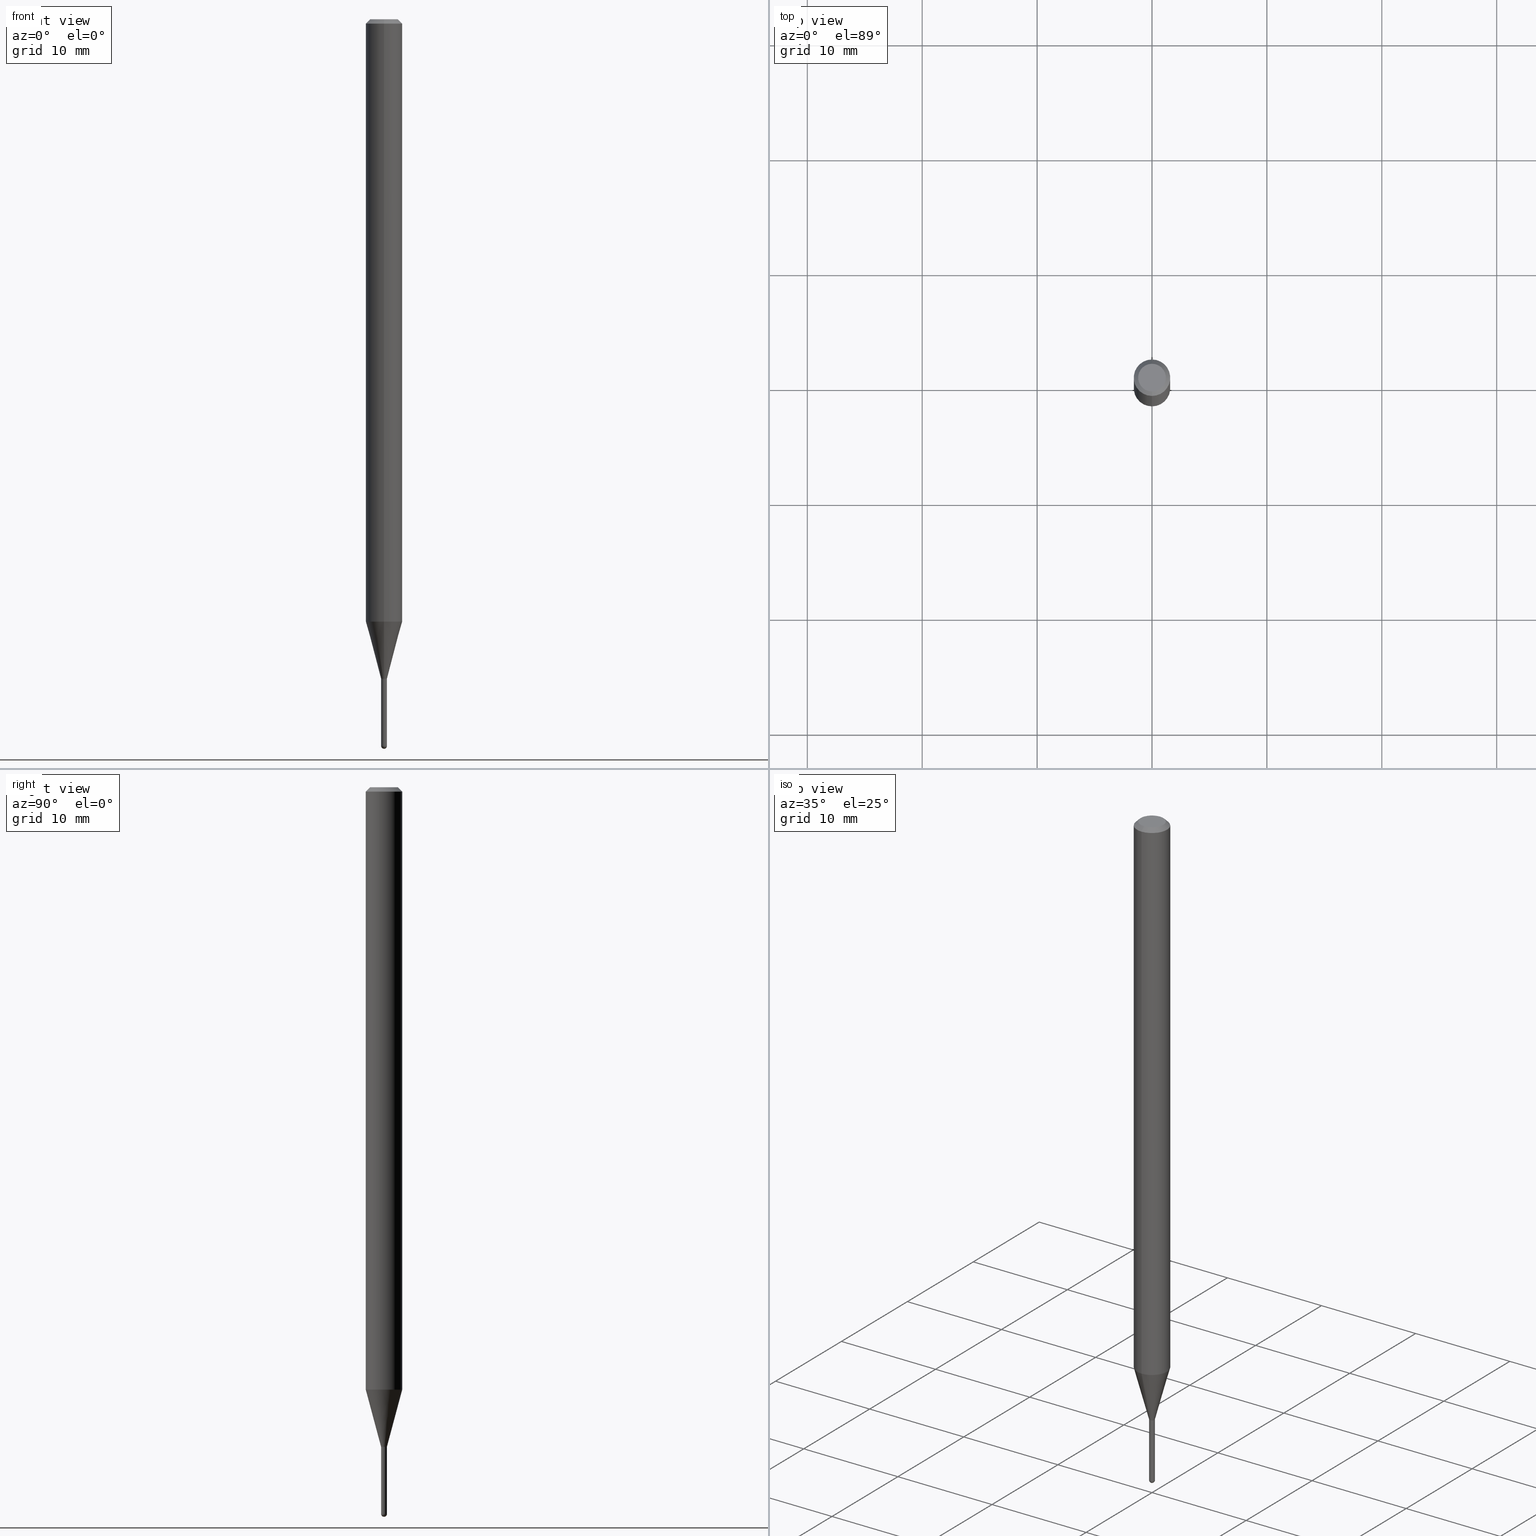
[diagram: canonical four-view strip — front | top / right | iso, engineering-drawing reading convention]
A machine part, canonical four-view strip (front | top / right | iso — engineering-drawing reading convention). The complete STEP part file that produces these views, byte-faithful:
ISO-10303-21;
HEADER;
FILE_DESCRIPTION (( 'STEP AP203' ),
    '1' );
FILE_NAME ('01557.STEP',
    '2024-03-07T19:39:17',
    ( '' ),
    ( '' ),
    'SwSTEP 2.0',
    'SolidWorks 2023',
    '' );
FILE_SCHEMA (( 'CONFIG_CONTROL_DESIGN' ));
ENDSEC;

DATA;
#1 =( CONVERSION_BASED_UNIT ( 'INCH', #359 ) LENGTH_UNIT ( ) NAMED_UNIT ( #110 ) );
#2 = DIRECTION ( 'NONE',  ( -2.445506458260102306E-29, 3.491427418928771548E-15, 1.000000000000000000 ) ) ;
#3 = AXIS2_PLACEMENT_3D ( 'NONE', #67, #63, #492 ) ;
#4 = EDGE_CURVE ( 'NONE', #188, #154, #497, .T. ) ;
#5 = PERSON_AND_ORGANIZATION_ROLE ( 'design_owner' ) ;
#6 = DIRECTION ( 'NONE',  ( -2.445506458260102306E-29, 3.491427418928771153E-15, 1.000000000000000000 ) ) ;
#7 = PERSON_AND_ORGANIZATION ( #243, #420 ) ;
#8 = CARTESIAN_POINT ( 'NONE',  ( 0.000000000000000000, 0.000000000000000000, 0.000000000000000000 ) ) ;
#9 = EDGE_CURVE ( 'NONE', #191, #188, #205, .T. ) ;
#10 = DIRECTION ( 'NONE',  ( -4.937700262164667949E-15, -0.7071067811865623387, 0.7071067811865325847 ) ) ;
#11 = SECURITY_CLASSIFICATION_LEVEL ( 'unclassified' ) ;
#12 = AXIS2_PLACEMENT_3D ( 'NONE', #381, #341, #190 ) ;
#13 = LINE ( 'NONE', #252, #112 ) ;
#14 = CARTESIAN_POINT ( 'NONE',  ( 3.668259687390156296E-31, -5.237141128393160650E-17, -0.01500000000000000812 ) ) ;
#15 = EDGE_CURVE ( 'NONE', #294, #26, #480, .T. ) ;
#16 = CARTESIAN_POINT ( 'NONE',  ( 6.927791673666378034E-17, 0.009499999999992108507, -2.259999999999999787 ) ) ;
#17 = ORIENTED_EDGE ( 'NONE', *, *, #383, .T. ) ;
#18 = AXIS2_PLACEMENT_3D ( 'NONE', #251, #452, #129 ) ;
#19 = APPROVAL_PERSON_ORGANIZATION ( #316, #328, #291 ) ;
#20 = DIRECTION ( 'NONE',  ( -2.445506458260102306E-29, 3.491427418928771548E-15, 1.000000000000000000 ) ) ;
#21 = ORIENTED_EDGE ( 'NONE', *, *, #138, .F. ) ;
#22 = DIRECTION ( 'NONE',  ( 1.000000000000000000, -6.982962677686235945E-15, 0.000000000000000000 ) ) ;
#23 = ORIENTED_EDGE ( 'NONE', *, *, #235, .T. ) ;
#24 = ADVANCED_FACE ( 'NONE', ( #318 ), #84, .F. ) ;
#25 = DIRECTION ( 'NONE',  ( -6.982962677686265922E-15, -1.000000000000000000, 3.491427418928771548E-15 ) ) ;
#26 = VERTEX_POINT ( 'NONE', #325 ) ;
#27 = DIRECTION ( 'NONE',  ( -6.982962677686265922E-15, -1.000000000000000000, 0.000000000000000000 ) ) ;
#28 = AXIS2_PLACEMENT_3D ( 'NONE', #208, #246, #444 ) ;
#29 = ORIENTED_EDGE ( 'NONE', *, *, #465, .T. ) ;
#30 = AXIS2_PLACEMENT_3D ( 'NONE', #494, #186, #385 ) ;
#31 = FACE_OUTER_BOUND ( 'NONE', #225, .T. ) ;
#32 = MANIFOLD_SOLID_BREP ( 'Body-Move/Copy2[2]', #389 ) ;
#33 = ORIENTED_EDGE ( 'NONE', *, *, #417, .F. ) ;
#34 = APPLICATION_PROTOCOL_DEFINITION ( 'international standard', 'config_control_design', 1994, #423 ) ;
#35 = CC_DESIGN_DATE_AND_TIME_ASSIGNMENT ( #448, #411, ( #399 ) ) ;
#36 = EDGE_LOOP ( 'NONE', ( #23, #97, #376, #500 ) ) ;
#37 = CALENDAR_DATE ( 2024, 7, 3 ) ;
#38 = CARTESIAN_POINT ( 'NONE',  ( 6.089217327400989947E-29, -8.693788533719431716E-15, -2.489999999999999769 ) ) ;
#39 = VECTOR ( 'NONE', #126, 39.37007874015748143 ) ;
#40 = CARTESIAN_POINT ( 'NONE',  ( 0.000000000000000000, 0.000000000000000000, 0.000000000000000000 ) ) ;
#41 = EDGE_LOOP ( 'NONE', ( #311, #358, #193, #265 ) ) ;
#42 = ADVANCED_FACE ( 'NONE', ( #275 ), #76, .T. ) ;
#43 = CARTESIAN_POINT ( 'NONE',  ( 2.575717417130880686E-16, 0.009999999999991756802, -2.260000000000000231 ) ) ;
#44 = DIRECTION ( 'NONE',  ( 1.000000000000000000, -6.982962677686265922E-15, 4.876176775795935793E-29 ) ) ;
#45 = DIRECTION ( 'NONE',  ( -2.445468806185136597E-29, 3.491481338843145583E-15, 1.000000000000000000 ) ) ;
#46 = SHAPE_DEFINITION_REPRESENTATION ( #176, #200 ) ;
#47 = VERTEX_POINT ( 'NONE', #320 ) ;
#48 = EDGE_CURVE ( 'NONE', #273, #182, #304, .T. ) ;
#49 = CARTESIAN_POINT ( 'NONE',  ( -6.633814543796425728E-17, -0.009500000000007889286, -2.259999999999999787 ) ) ;
#50 = ORIENTED_EDGE ( 'NONE', *, *, #211, .T. ) ;
#51 = PERSON_AND_ORGANIZATION ( #243, #420 ) ;
#52 = DIRECTION ( 'NONE',  ( 2.445506458260102306E-29, -3.491427418928771548E-15, -1.000000000000000000 ) ) ;
#53 = AXIS2_PLACEMENT_3D ( 'NONE', #156, #435, #317 ) ;
#54 = LOCAL_TIME ( 14, 39, 17.00000000000000000, #372 ) ;
#55 = DIRECTION ( 'NONE',  ( -2.445468806185136597E-29, 3.491481338843145583E-15, 1.000000000000000000 ) ) ;
#56 = CC_DESIGN_PERSON_AND_ORGANIZATION_ASSIGNMENT ( #51, #296, ( #247 ) ) ;
#57 = COORDINATED_UNIVERSAL_TIME_OFFSET ( 5, 0, .BEHIND. ) ;
#58 = DIRECTION ( 'NONE',  ( -2.445506458260102306E-29, 3.491427418928771548E-15, 1.000000000000000000 ) ) ;
#59 = ORIENTED_EDGE ( 'NONE', *, *, #281, .F. ) ;
#60 = DIRECTION ( 'NONE',  ( -2.445506458260102306E-29, 3.491427418928771548E-15, 1.000000000000000000 ) ) ;
#61 = CIRCLE ( 'NONE', #406, 0.01000000000000000021 ) ;
#62 = VECTOR ( 'NONE', #319, 39.37007874015748854 ) ;
#63 = DIRECTION ( 'NONE',  ( -2.445468806185136597E-29, 3.491481338843145583E-15, 1.000000000000000000 ) ) ;
#64 = ORIENTED_EDGE ( 'NONE', *, *, #417, .T. ) ;
#65 = SPHERICAL_SURFACE ( 'NONE', #237, 0.01000000000000008521 ) ;
#66 = ORIENTED_EDGE ( 'NONE', *, *, #437, .F. ) ;
#67 = CARTESIAN_POINT ( 'NONE',  ( 5.526759501978408888E-29, -7.890747825785510097E-15, -2.260000000000000231 ) ) ;
#68 = ORIENTED_EDGE ( 'NONE', *, *, #48, .T. ) ;
#69 = CARTESIAN_POINT ( 'NONE',  ( 4.364351673553919652E-16, 0.06249999999999995143, -0.01500000000000022669 ) ) ;
#70 = CIRCLE ( 'NONE', #507, 0.009499999999999999764 ) ;
#71 = ORIENTED_EDGE ( 'NONE', *, *, #437, .T. ) ;
#72 = ADVANCED_FACE ( 'NONE', ( #206 ), #236, .F. ) ;
#73 = DIRECTION ( 'NONE',  ( -2.445506458260102306E-29, 3.491427418928771548E-15, 1.000000000000000000 ) ) ;
#74 = VERTEX_POINT ( 'NONE', #77 ) ;
#75 = DIRECTION ( 'NONE',  ( 1.000000000000000000, 0.000000000000000000, 0.000000000000000000 ) ) ;
#76 = CYLINDRICAL_SURFACE ( 'NONE', #245, 0.01000000000000000021 ) ;
#77 = CARTESIAN_POINT ( 'NONE',  ( 4.440892098501133991E-16, 0.06249999999999995143, -0.01500000000000022669 ) ) ;
#78 = AXIS2_PLACEMENT_3D ( 'NONE', #410, #288, #210 ) ;
#79 = DIRECTION ( 'NONE',  ( -2.445506458260102306E-29, 3.491427418928771548E-15, 1.000000000000000000 ) ) ;
#80 = ORIENTED_EDGE ( 'NONE', *, *, #343, .F. ) ;
#81 = PERSON_AND_ORGANIZATION_ROLE ( 'creator' ) ;
#82 = ORIENTED_EDGE ( 'NONE', *, *, #109, .F. ) ;
#83 = CARTESIAN_POINT ( 'NONE',  ( 3.840629472727447874E-16, 0.04749999999999999362, -1.747056831868805136E-16 ) ) ;
#84 = CYLINDRICAL_SURFACE ( 'NONE', #53, 0.009999999999999649794 ) ;
#85 = AXIS2_PLACEMENT_3D ( 'NONE', #477, #6, #509 ) ;
#86 = AXIS2_PLACEMENT_3D ( 'NONE', #306, #302, #418 ) ;
#87 = CALENDAR_DATE ( 2024, 7, 3 ) ;
#88 = DIRECTION ( 'NONE',  ( -1.000000000000000000, 6.982962677686265922E-15, -4.876176775795935793E-29 ) ) ;
#89 = ORIENTED_EDGE ( 'NONE', *, *, #407, .F. ) ;
#90 = DIRECTION ( 'NONE',  ( -7.105427357601000281E-15, -1.000000000000000000, 0.000000000000000000 ) ) ;
#91 = DIRECTION ( 'NONE',  ( -2.445506458260102306E-29, 3.491427418928771153E-15, 1.000000000000000000 ) ) ;
#92 = EDGE_CURVE ( 'NONE', #352, #397, #471, .T. ) ;
#93 = AXIS2_PLACEMENT_3D ( 'NONE', #360, #2, #285 ) ;
#94 = CONICAL_SURFACE ( 'NONE', #414, 0.009499999999999999764, 0.7853981633974728149 ) ;
#95 = CIRCLE ( 'NONE', #347, 0.06250000000000000000 ) ;
#96 = CARTESIAN_POINT ( 'NONE',  ( 5.047689992163456778E-29, -7.206541279564027656E-15, -2.064067332602639304 ) ) ;
#97 = ORIENTED_EDGE ( 'NONE', *, *, #125, .T. ) ;
#98 = DIRECTION ( 'NONE',  ( -2.445506458260102306E-29, 3.491427418928771548E-15, 1.000000000000000000 ) ) ;
#99 = CARTESIAN_POINT ( 'NONE',  ( 6.089217327400989947E-29, -8.693788533719431716E-15, -2.489999999999999769 ) ) ;
#100 = ORIENTED_EDGE ( 'NONE', *, *, #125, .F. ) ;
#101 = ADVANCED_FACE ( 'NONE', ( #401 ), #282, .T. ) ;
#102 =( GEOMETRIC_REPRESENTATION_CONTEXT ( 3 ) GLOBAL_UNCERTAINTY_ASSIGNED_CONTEXT ( ( #309 ) ) GLOBAL_UNIT_ASSIGNED_CONTEXT ( ( #1, #321, #153 ) ) REPRESENTATION_CONTEXT ( 'NONE', 'WORKASPACE' ) );
#103 = DIRECTION ( 'NONE',  ( 2.445506458260102306E-29, -3.491427418928771153E-15, -1.000000000000000000 ) ) ;
#104 = ORIENTED_EDGE ( 'NONE', *, *, #138, .T. ) ;
#105 = LINE ( 'NONE', #424, #354 ) ;
#106 = VERTEX_POINT ( 'NONE', #116 ) ;
#107 = FACE_OUTER_BOUND ( 'NONE', #495, .T. ) ;
#108 = EDGE_LOOP ( 'NONE', ( #199, #386, #89, #66, #234 ) ) ;
#109 = EDGE_CURVE ( 'NONE', #487, #504, #121, .T. ) ;
#110 = DIMENSIONAL_EXPONENTS ( 1.000000000000000000, 0.000000000000000000, 0.000000000000000000, 0.000000000000000000, 0.000000000000000000, 0.000000000000000000, 0.000000000000000000 ) ;
#111 = DIRECTION ( 'NONE',  ( -2.445506458260102306E-29, 3.491427418928771548E-15, 1.000000000000000000 ) ) ;
#112 = VECTOR ( 'NONE', #450, 39.37007874015748854 ) ;
#113 = CIRCLE ( 'NONE', #472, 0.06250000000000000000 ) ;
#114 = ORIENTED_EDGE ( 'NONE', *, *, #248, .T. ) ;
#115 = DIRECTION ( 'NONE',  ( -2.445506458260102306E-29, 3.491427418928771548E-15, 1.000000000000000000 ) ) ;
#116 = CARTESIAN_POINT ( 'NONE',  ( 4.440892098501130047E-16, 0.06249999999999279743, -2.064067332602639304 ) ) ;
#117 = ADVANCED_FACE ( 'NONE', ( #157 ), #337, .T. ) ;
#118 = DIRECTION ( 'NONE',  ( -6.982962677686265922E-15, -1.000000000000000000, 4.370956789862821150E-15 ) ) ;
#119 = DIRECTION ( 'NONE',  ( -1.000000000000000000, 6.982962677686265922E-15, -4.883557194083113462E-29 ) ) ;
#120 = APPROVAL_DATE_TIME ( #510, #219 ) ;
#121 = LINE ( 'NONE', #442, #184 ) ;
#122 = AXIS2_PLACEMENT_3D ( 'NONE', #446, #45, #475 ) ;
#123 = LINE ( 'NONE', #284, #287 ) ;
#124 = DIRECTION ( 'NONE',  ( -2.445506458260102306E-29, 3.491427418928771548E-15, 1.000000000000000000 ) ) ;
#125 = EDGE_CURVE ( 'NONE', #106, #74, #123, .T. ) ;
#126 = DIRECTION ( 'NONE',  ( -4.851104656540964275E-15, -0.7071067811865500152, -0.7071067811865450192 ) ) ;
#127 = AXIS2_PLACEMENT_3D ( 'NONE', #409, #119, #474 ) ;
#128 = AXIS2_PLACEMENT_3D ( 'NONE', #40, #204, #75 ) ;
#129 = DIRECTION ( 'NONE',  ( -6.982962677686265922E-15, -1.000000000000000000, 3.491427418928771548E-15 ) ) ;
#130 = ORIENTED_EDGE ( 'NONE', *, *, #343, .T. ) ;
#131 = EDGE_CURVE ( 'NONE', #487, #106, #13, .T. ) ;
#132 = LINE ( 'NONE', #255, #380 ) ;
#133 = COORDINATED_UNIVERSAL_TIME_OFFSET ( 5, 0, .BEHIND. ) ;
#134 = DIRECTION ( 'NONE',  ( -6.982962677686265922E-15, -1.000000000000000000, 3.491427418928771548E-15 ) ) ;
#135 = EDGE_LOOP ( 'NONE', ( #419, #240 ) ) ;
#136 = CC_DESIGN_APPROVAL ( #219, ( #301 ) ) ;
#137 = CARTESIAN_POINT ( 'NONE',  ( -3.773273898774340269E-16, -0.04749999999999999362, 1.569799216113527785E-16 ) ) ;
#138 = EDGE_CURVE ( 'NONE', #154, #47, #61, .T. ) ;
#139 = DIRECTION ( 'NONE',  ( -1.000000000000000000, 6.982962677686265922E-15, -4.883557194083113462E-29 ) ) ;
#140 = EDGE_CURVE ( 'NONE', #191, #47, #453, .T. ) ;
#141 = LINE ( 'NONE', #278, #62 ) ;
#142 = ORIENTED_EDGE ( 'NONE', *, *, #9, .T. ) ;
#143 = AXIS2_PLACEMENT_3D ( 'NONE', #99, #427, #179 ) ;
#144 = CARTESIAN_POINT ( 'NONE',  ( 2.167423220526591496E-46, -3.094410499309579450E-32, -8.862880787763864499E-18 ) ) ;
#145 = EDGE_LOOP ( 'NONE', ( #388, #114, #165, #33 ) ) ;
#146 = DIRECTION ( 'NONE',  ( -2.445506458260102306E-29, 3.491427418928771153E-15, 1.000000000000000000 ) ) ;
#147 = CC_DESIGN_PERSON_AND_ORGANIZATION_ASSIGNMENT ( #7, #365, ( #247 ) ) ;
#148 = ORIENTED_EDGE ( 'NONE', *, *, #377, .F. ) ;
#149 = CARTESIAN_POINT ( 'NONE',  ( 0.01000000000000000021, -6.982962677686265724E-17, 4.876176775795935968E-31 ) ) ;
#150 = ORIENTED_EDGE ( 'NONE', *, *, #274, .F. ) ;
#151 = APPLICATION_PROTOCOL_DEFINITION ( 'international standard', 'config_control_design', 1994, #505 ) ;
#152 = ORIENTED_EDGE ( 'NONE', *, *, #314, .F. ) ;
#153 =( NAMED_UNIT ( * ) SI_UNIT ( $, .STERADIAN. ) SOLID_ANGLE_UNIT ( ) );
#154 = VERTEX_POINT ( 'NONE', #336 ) ;
#155 = MECHANICAL_CONTEXT ( 'NONE', #423, 'mechanical' ) ;
#156 = CARTESIAN_POINT ( 'NONE',  ( 0.000000000000000000, 0.000000000000000000, 0.000000000000000000 ) ) ;
#157 = FACE_OUTER_BOUND ( 'NONE', #145, .T. ) ;
#158 = LOCAL_TIME ( 14, 39, 17.00000000000000000, #434 ) ;
#159 = DATE_AND_TIME ( #361, #174 ) ;
#160 = EDGE_CURVE ( 'NONE', #269, #74, #379, .T. ) ;
#161 = DIRECTION ( 'NONE',  ( 6.982962677686265922E-15, 1.000000000000000000, -3.483106191921935554E-15 ) ) ;
#162 = PERSON_AND_ORGANIZATION ( #243, #420 ) ;
#163 = DIRECTION ( 'NONE',  ( -2.445506458260102306E-29, 3.491427418928771548E-15, 1.000000000000000000 ) ) ;
#164 = DIRECTION ( 'NONE',  ( -6.982962677686265922E-15, -1.000000000000000000, 3.483106191921935554E-15 ) ) ;
#165 = ORIENTED_EDGE ( 'NONE', *, *, #160, .T. ) ;
#166 = CIRCLE ( 'NONE', #439, 0.06250000000000000000 ) ;
#167 = CIRCLE ( 'NONE', #12, 0.009999999999999648059 ) ;
#168 = LOCAL_TIME ( 14, 39, 17.00000000000000000, #133 ) ;
#169 = PLANE ( 'NONE',  #447 ) ;
#170 = CARTESIAN_POINT ( 'NONE',  ( 6.113244432318252078E-29, -8.729315670507435968E-15, -2.500000000000000000 ) ) ;
#171 = APPROVAL_ROLE ( '' ) ;
#172 = DIRECTION ( 'NONE',  ( -6.982962677686265922E-15, -1.000000000000000000, 3.483106191921935554E-15 ) ) ;
#173 = VECTOR ( 'NONE', #335, 39.37007874015748143 ) ;
#174 = LOCAL_TIME ( 14, 39, 17.00000000000000000, #194 ) ;
#175 = CARTESIAN_POINT ( 'NONE',  ( 0.000000000000000000, 0.000000000000000000, 0.000000000000000000 ) ) ;
#176 = PRODUCT_DEFINITION_SHAPE ( 'NONE', 'NONE',  #301 ) ;
#177 = ADVANCED_FACE ( 'NONE', ( #373 ), #346, .T. ) ;
#178 = ORIENTED_EDGE ( 'NONE', *, *, #109, .T. ) ;
#179 = DIRECTION ( 'NONE',  ( 1.000000000000000000, -6.982962677686235945E-15, 0.000000000000000000 ) ) ;
#180 = ORIENTED_EDGE ( 'NONE', *, *, #248, .F. ) ;
#181 = DIRECTION ( 'NONE',  ( -2.445506458260102306E-29, 3.491427418928771548E-15, 1.000000000000000000 ) ) ;
#182 = VERTEX_POINT ( 'NONE', #49 ) ;
#183 = EDGE_CURVE ( 'NONE', #26, #269, #212, .T. ) ;
#184 = VECTOR ( 'NONE', #363, 39.37007874015748143 ) ;
#185 = AXIS2_PLACEMENT_3D ( 'NONE', #461, #103, #496 ) ;
#186 = DIRECTION ( 'NONE',  ( -2.445468806185136597E-29, 3.491481338843145583E-15, 1.000000000000000000 ) ) ;
#187 = APPROVAL_PERSON_ORGANIZATION ( #408, #391, #171 ) ;
#188 = VERTEX_POINT ( 'NONE', #412 ) ;
#189 = ADVANCED_FACE ( 'NONE', ( #481 ), #484, .T. ) ;
#190 = DIRECTION ( 'NONE',  ( -6.982962677686265922E-15, -1.000000000000000000, 0.000000000000000000 ) ) ;
#191 = VERTEX_POINT ( 'NONE', #170 ) ;
#192 = CARTESIAN_POINT ( 'NONE',  ( 7.105427357606255327E-17, 0.009999999999991729047, -2.259500000000000508 ) ) ;
#193 = ORIENTED_EDGE ( 'NONE', *, *, #235, .F. ) ;
#194 = COORDINATED_UNIVERSAL_TIME_OFFSET ( 5, 0, .BEHIND. ) ;
#195 = AXIS2_PLACEMENT_3D ( 'NONE', #416, #163, #134 ) ;
#196 = CIRCLE ( 'NONE', #86, 0.009999999999999649794 ) ;
#197 = DIRECTION ( 'NONE',  ( 1.000000000000000000, -6.982962677686235945E-15, 0.000000000000000000 ) ) ;
#198 = APPROVAL_ROLE ( '' ) ;
#199 = ORIENTED_EDGE ( 'NONE', *, *, #4, .T. ) ;
#200 = ADVANCED_BREP_SHAPE_REPRESENTATION ( '01557', ( #367, #32, #128 ), #102 ) ;
#201 =( LENGTH_UNIT ( ) NAMED_UNIT ( * ) SI_UNIT ( $, .METRE. ) );
#202 = CARTESIAN_POINT ( 'NONE',  ( -6.982962677680492249E-17, -0.01000000000000753758, -2.260000000000000231 ) ) ;
#203 = CC_DESIGN_PERSON_AND_ORGANIZATION_ASSIGNMENT ( #441, #81, ( #301 ) ) ;
#204 = DIRECTION ( 'NONE',  ( 0.000000000000000000, 0.000000000000000000, 1.000000000000000000 ) ) ;
#205 = CIRCLE ( 'NONE', #28, 0.01000000000000008521 ) ;
#206 = FACE_OUTER_BOUND ( 'NONE', #393, .T. ) ;
#207 = CIRCLE ( 'NONE', #370, 0.01000000000000000021 ) ;
#208 = CARTESIAN_POINT ( 'NONE',  ( 6.088362161111811119E-29, -8.695013180518578499E-15, -2.489999999999999769 ) ) ;
#209 = ADVANCED_FACE ( 'NONE', ( #216 ), #486, .F. ) ;
#210 = DIRECTION ( 'NONE',  ( -6.982962677686266711E-15, -1.000000000000000000, 3.491427418928772337E-15 ) ) ;
#211 = EDGE_CURVE ( 'NONE', #487, #294, #229, .T. ) ;
#212 = LINE ( 'NONE', #258, #173 ) ;
#213 = AXIS2_PLACEMENT_3D ( 'NONE', #402, #124, #394 ) ;
#214 = CARTESIAN_POINT ( 'NONE',  ( 3.668259687390156296E-31, -5.237141128393160650E-17, -0.01500000000000000812 ) ) ;
#215 = APPROVAL_DATE_TIME ( #250, #328 ) ;
#216 = FACE_OUTER_BOUND ( 'NONE', #299, .T. ) ;
#217 = ORIENTED_EDGE ( 'NONE', *, *, #263, .T. ) ;
#218 = DESIGN_CONTEXT ( 'detailed design', #505, 'design' ) ;
#219 = APPROVAL ( #357, 'UNSPECIFIED' ) ;
#220 = CARTESIAN_POINT ( 'NONE',  ( -0.01000000000000000021, 7.105427357601002007E-17, -4.918935090254906272E-31 ) ) ;
#221 = AXIS2_PLACEMENT_3D ( 'NONE', #469, #111, #222 ) ;
#222 = DIRECTION ( 'NONE',  ( -6.982962677686265922E-15, -1.000000000000000000, 0.000000000000000000 ) ) ;
#223 = ORIENTED_EDGE ( 'NONE', *, *, #274, .T. ) ;
#224 = CYLINDRICAL_SURFACE ( 'NONE', #30, 0.01000000000000000021 ) ;
#225 = EDGE_LOOP ( 'NONE', ( #498, #142, #259, #148 ) ) ;
#226 = ADVANCED_FACE ( 'NONE', ( #455 ), #169, .F. ) ;
#227 = CYLINDRICAL_SURFACE ( 'NONE', #271, 0.06250000000000000000 ) ;
#228 = ORIENTED_EDGE ( 'NONE', *, *, #491, .T. ) ;
#229 = CIRCLE ( 'NONE', #398, 0.009999999999999648059 ) ;
#230 = AXIS2_PLACEMENT_3D ( 'NONE', #144, #181, #344 ) ;
#231 = CARTESIAN_POINT ( 'NONE',  ( 6.088362161111811119E-29, -8.695013180518578499E-15, -2.489999999999999769 ) ) ;
#232 = ORIENTED_EDGE ( 'NONE', *, *, #4, .F. ) ;
#233 = DIRECTION ( 'NONE',  ( -6.982962677686265922E-15, -1.000000000000000000, 0.000000000000000000 ) ) ;
#234 = ORIENTED_EDGE ( 'NONE', *, *, #396, .T. ) ;
#235 = EDGE_CURVE ( 'NONE', #26, #106, #166, .T. ) ;
#236 = PLANE ( 'NONE',  #85 ) ;
#237 = AXIS2_PLACEMENT_3D ( 'NONE', #231, #139, #272 ) ;
#238 = ORIENTED_EDGE ( 'NONE', *, *, #183, .T. ) ;
#239 = FACE_OUTER_BOUND ( 'NONE', #41, .T. ) ;
#240 = ORIENTED_EDGE ( 'NONE', *, *, #92, .T. ) ;
#241 = CC_DESIGN_DATE_AND_TIME_ASSIGNMENT ( #159, #324, ( #301 ) ) ;
#242 = EDGE_LOOP ( 'NONE', ( #493, #17 ) ) ;
#243 = PERSON ( 'UNSPECIFIED', 'UNSPECIFIED', 'UNSPECIFIED', ('UNSPECIFIED'), ('UNSPECIFIED'), ('UNSPECIFIED') ) ;
#244 = PERSON_AND_ORGANIZATION_ROLE ( 'classification_officer' ) ;
#245 = AXIS2_PLACEMENT_3D ( 'NONE', #8, #405, #44 ) ;
#246 = DIRECTION ( 'NONE',  ( 1.000000000000000000, -6.982962677686265922E-15, 4.883557194083112340E-29 ) ) ;
#247 = PRODUCT_DEFINITION_FORMATION_WITH_SPECIFIED_SOURCE ( 'ANY', '', #307, .NOT_KNOWN. ) ;
#248 = EDGE_CURVE ( 'NONE', #267, #269, #485, .T. ) ;
#249 = DIRECTION ( 'NONE',  ( -2.445506458260102306E-29, 3.491427418928771548E-15, 1.000000000000000000 ) ) ;
#250 = DATE_AND_TIME ( #286, #262 ) ;
#251 = CARTESIAN_POINT ( 'NONE',  ( 0.000000000000000000, 0.000000000000000000, 0.000000000000000000 ) ) ;
#252 = CARTESIAN_POINT ( 'NONE',  ( 7.105427357606277514E-17, 0.009999999999991756802, -2.260000000000000231 ) ) ;
#253 = AXIS2_PLACEMENT_3D ( 'NONE', #268, #499, #233 ) ;
#254 = CALENDAR_DATE ( 2024, 7, 3 ) ;
#255 = CARTESIAN_POINT ( 'NONE',  ( -6.633814543796425728E-17, -0.009500000000007889286, -2.259999999999999787 ) ) ;
#256 = EDGE_LOOP ( 'NONE', ( #503, #50, #468, #462 ) ) ;
#257 = CC_DESIGN_PERSON_AND_ORGANIZATION_ASSIGNMENT ( #476, #5, ( #307 ) ) ;
#258 = CARTESIAN_POINT ( 'NONE',  ( -4.364351673553916201E-16, -0.06250000000000000000, 2.182142136830482217E-16 ) ) ;
#259 = ORIENTED_EDGE ( 'NONE', *, *, #396, .F. ) ;
#260 = CARTESIAN_POINT ( 'NONE',  ( 5.526844595667830757E-29, -7.890625966779023461E-15, -2.259999999999999787 ) ) ;
#261 = ORIENTED_EDGE ( 'NONE', *, *, #371, .F. ) ;
#262 = LOCAL_TIME ( 14, 39, 17.00000000000000000, #57 ) ;
#263 = EDGE_CURVE ( 'NONE', #182, #313, #132, .T. ) ;
#264 = CARTESIAN_POINT ( 'NONE',  ( -6.982962677680518133E-17, -0.01000000000000757054, -2.259500000000000508 ) ) ;
#265 = ORIENTED_EDGE ( 'NONE', *, *, #15, .F. ) ;
#266 = PLANE ( 'NONE',  #185 ) ;
#267 = VERTEX_POINT ( 'NONE', #137 ) ;
#268 = CARTESIAN_POINT ( 'NONE',  ( 5.525621842438702267E-29, -7.888880253069560004E-15, -2.259500000000000508 ) ) ;
#269 = VERTEX_POINT ( 'NONE', #297 ) ;
#270 = AXIS2_PLACEMENT_3D ( 'NONE', #14, #52, #415 ) ;
#271 = AXIS2_PLACEMENT_3D ( 'NONE', #175, #20, #25 ) ;
#272 = DIRECTION ( 'NONE',  ( 6.982962677686265922E-15, 1.000000000000000000, 0.000000000000000000 ) ) ;
#273 = VERTEX_POINT ( 'NONE', #16 ) ;
#274 = EDGE_CURVE ( 'NONE', #74, #269, #113, .T. ) ;
#275 = FACE_OUTER_BOUND ( 'NONE', #108, .T. ) ;
#276 = DIRECTION ( 'NONE',  ( -6.982962677686265922E-15, -1.000000000000000000, 0.000000000000000000 ) ) ;
#277 = ORIENTED_EDGE ( 'NONE', *, *, #314, .T. ) ;
#278 = CARTESIAN_POINT ( 'NONE',  ( 6.750155989726477322E-17, 0.009499999999992108507, -2.259999999999999787 ) ) ;
#279 = AXIS2_PLACEMENT_3D ( 'NONE', #323, #479, #161 ) ;
#280 = CONICAL_SURFACE ( 'NONE', #440, 0.009499999999999999764, 0.7853981633974728149 ) ;
#281 = EDGE_CURVE ( 'NONE', #154, #352, #289, .T. ) ;
#282 = SPHERICAL_SURFACE ( 'NONE', #127, 0.01000000000000008521 ) ;
#283 = PERSON_AND_ORGANIZATION ( #243, #420 ) ;
#284 = CARTESIAN_POINT ( 'NONE',  ( 4.440892098500625669E-16, 0.06250000000000000000, -2.182142136830482217E-16 ) ) ;
#285 = DIRECTION ( 'NONE',  ( -6.982962677686265922E-15, -1.000000000000000000, 0.000000000000000000 ) ) ;
#286 = CALENDAR_DATE ( 2024, 7, 3 ) ;
#287 = VECTOR ( 'NONE', #91, 39.37007874015748143 ) ;
#288 = DIRECTION ( 'NONE',  ( -2.445506458260102306E-29, 3.491427418928771548E-15, 1.000000000000000000 ) ) ;
#289 = LINE ( 'NONE', #220, #315 ) ;
#290 = DIRECTION ( 'NONE',  ( 1.000000000000000000, -6.982962677686235945E-15, 0.000000000000000000 ) ) ;
#291 = APPROVAL_ROLE ( '' ) ;
#292 = DIRECTION ( 'NONE',  ( -6.982962677686265922E-15, -1.000000000000000000, 0.000000000000000000 ) ) ;
#293 = PRODUCT_RELATED_PRODUCT_CATEGORY ( 'detail', '', ( #307 ) ) ;
#294 = VERTEX_POINT ( 'NONE', #451 ) ;
#295 = CIRCLE ( 'NONE', #3, 0.01000000000000000021 ) ;
#296 = PERSON_AND_ORGANIZATION_ROLE ( 'design_supplier' ) ;
#297 = CARTESIAN_POINT ( 'NONE',  ( -4.364351673553912750E-16, -0.06250000000000005551, -0.01499999999999979128 ) ) ;
#298 = CARTESIAN_POINT ( 'NONE',  ( 6.089217327400989947E-29, -8.693788533719431716E-15, -2.489999999999999769 ) ) ;
#299 = EDGE_LOOP ( 'NONE', ( #82, #308, #351, #277 ) ) ;
#300 = EDGE_CURVE ( 'NONE', #470, #267, #430, .T. ) ;
#301 = PRODUCT_DEFINITION ( 'UNKNOWN', '', #247, #218 ) ;
#302 = DIRECTION ( 'NONE',  ( -2.445506458260102306E-29, 3.491427418928771548E-15, 1.000000000000000000 ) ) ;
#303 = ORIENTED_EDGE ( 'NONE', *, *, #140, .T. ) ;
#304 = CIRCLE ( 'NONE', #93, 0.009499999999999999764 ) ;
#305 = VECTOR ( 'NONE', #502, 39.37007874015748143 ) ;
#306 = CARTESIAN_POINT ( 'NONE',  ( 5.525621842438702267E-29, -7.888880253069560004E-15, -2.259500000000000508 ) ) ;
#307 = PRODUCT ( '01557', '01557', '', ( #155 ) ) ;
#308 = ORIENTED_EDGE ( 'NONE', *, *, #433, .F. ) ;
#309 = UNCERTAINTY_MEASURE_WITH_UNIT (LENGTH_MEASURE( 1.000000000000000082E-05 ), #1, 'distance_accuracy_value', 'NONE');
#310 = DIRECTION ( 'NONE',  ( -2.445468806185136597E-29, 3.491481338843145583E-15, 1.000000000000000000 ) ) ;
#311 = ORIENTED_EDGE ( 'NONE', *, *, #433, .T. ) ;
#312 = FACE_OUTER_BOUND ( 'NONE', #256, .T. ) ;
#313 = VERTEX_POINT ( 'NONE', #264 ) ;
#314 = EDGE_CURVE ( 'NONE', #313, #504, #196, .T. ) ;
#315 = VECTOR ( 'NONE', #378, 39.37007874015748143 ) ;
#316 = PERSON_AND_ORGANIZATION ( #243, #420 ) ;
#317 = DIRECTION ( 'NONE',  ( -6.982962677686265922E-15, -1.000000000000000000, 3.491427418928771548E-15 ) ) ;
#318 = FACE_OUTER_BOUND ( 'NONE', #356, .T. ) ;
#319 = DIRECTION ( 'NONE',  ( 5.024295867788184663E-15, 0.7071067811865672237, 0.7071067811865276997 ) ) ;
#320 = CARTESIAN_POINT ( 'NONE',  ( -7.105427357594942569E-17, -0.01000000000000873801, -2.489999999999999769 ) ) ;
#321 =( NAMED_UNIT ( * ) PLANE_ANGLE_UNIT ( ) SI_UNIT ( $, .RADIAN. ) );
#322 = CONICAL_SURFACE ( 'NONE', #221, 0.009999999999999648059, 0.2617993877991575125 ) ;
#323 = CARTESIAN_POINT ( 'NONE',  ( 3.668259687390156296E-31, -5.237141128393160650E-17, -0.01500000000000000812 ) ) ;
#324 = DATE_TIME_ROLE ( 'creation_date' ) ;
#325 = CARTESIAN_POINT ( 'NONE',  ( -4.364351673553413302E-16, -0.06250000000000721645, -2.064067332602638860 ) ) ;
#326 = APPROVAL_DATE_TIME ( #333, #391 ) ;
#327 = DIRECTION ( 'NONE',  ( -6.982962677686265922E-15, -1.000000000000000000, 4.370956789862821150E-15 ) ) ;
#328 = APPROVAL ( #473, 'UNSPECIFIED' ) ;
#329 = AXIS2_PLACEMENT_3D ( 'NONE', #413, #330, #90 ) ;
#330 = DIRECTION ( 'NONE',  ( -1.000000000000000000, 7.105427357601001070E-15, -4.926315508542082329E-29 ) ) ;
#331 = CC_DESIGN_APPROVAL ( #328, ( #247 ) ) ;
#332 = CARTESIAN_POINT ( 'NONE',  ( 6.982962677691792681E-17, 0.009999999999992108951, -2.260000000000000231 ) ) ;
#333 = DATE_AND_TIME ( #87, #54 ) ;
#334 = ADVANCED_FACE ( 'NONE', ( #464 ), #266, .F. ) ;
#335 = DIRECTION ( 'NONE',  ( -2.445506458260102306E-29, 3.491427418928771153E-15, 1.000000000000000000 ) ) ;
#336 = CARTESIAN_POINT ( 'NONE',  ( -0.01000000000000000021, -8.221213906176461614E-15, -2.489999999999999769 ) ) ;
#337 = CONICAL_SURFACE ( 'NONE', #279, 0.06250000000000000000, 0.7853981633974483900 ) ;
#338 = CARTESIAN_POINT ( 'NONE',  ( 0.01000000000000000021, -7.960577452562371818E-15, -2.260000000000000231 ) ) ;
#339 = ADVANCED_FACE ( 'NONE', ( #31 ), #65, .T. ) ;
#340 = ORIENTED_EDGE ( 'NONE', *, *, #48, .F. ) ;
#341 = DIRECTION ( 'NONE',  ( -2.445506458260102306E-29, 3.491427418928771548E-15, 1.000000000000000000 ) ) ;
#342 = EDGE_LOOP ( 'NONE', ( #384, #29, #152, #422 ) ) ;
#343 = EDGE_CURVE ( 'NONE', #504, #313, #454, .T. ) ;
#344 = DIRECTION ( 'NONE',  ( -6.982962677686266711E-15, -1.000000000000000000, 3.491427418928772337E-15 ) ) ;
#345 = ORIENTED_EDGE ( 'NONE', *, *, #377, .T. ) ;
#346 = CONICAL_SURFACE ( 'NONE', #270, 0.06250000000000000000, 0.7853981633974483900 ) ;
#347 = AXIS2_PLACEMENT_3D ( 'NONE', #355, #115, #118 ) ;
#348 = ORIENTED_EDGE ( 'NONE', *, *, #211, .F. ) ;
#349 = LINE ( 'NONE', #149, #305 ) ;
#350 = ADVANCED_FACE ( 'NONE', ( #467 ), #224, .T. ) ;
#351 = ORIENTED_EDGE ( 'NONE', *, *, #371, .T. ) ;
#352 = VERTEX_POINT ( 'NONE', #421 ) ;
#353 = AXIS2_PLACEMENT_3D ( 'NONE', #214, #58, #172 ) ;
#354 = VECTOR ( 'NONE', #146, 39.37007874015748143 ) ;
#355 = CARTESIAN_POINT ( 'NONE',  ( 5.047689992163456778E-29, -7.206541279564027656E-15, -2.064067332602639304 ) ) ;
#356 = EDGE_LOOP ( 'NONE', ( #348, #178, #130, #261 ) ) ;
#357 = APPROVAL_STATUS ( 'not_yet_approved' ) ;
#358 = ORIENTED_EDGE ( 'NONE', *, *, #131, .T. ) ;
#359 = LENGTH_MEASURE_WITH_UNIT ( LENGTH_MEASURE( 0.02539999999999999897 ), #201 );
#360 = CARTESIAN_POINT ( 'NONE',  ( 5.526844595667830757E-29, -7.890625966779023461E-15, -2.259999999999999787 ) ) ;
#361 = CALENDAR_DATE ( 2024, 7, 3 ) ;
#362 = APPROVAL_PERSON_ORGANIZATION ( #283, #219, #198 ) ;
#363 = DIRECTION ( 'NONE',  ( -2.445506458260102306E-29, 3.491427418928771153E-15, 1.000000000000000000 ) ) ;
#364 = DIRECTION ( 'NONE',  ( -2.445468806185136597E-29, 3.491481338843145583E-15, 1.000000000000000000 ) ) ;
#365 = PERSON_AND_ORGANIZATION_ROLE ( 'creator' ) ;
#366 = CARTESIAN_POINT ( 'NONE',  ( 6.089217327400989947E-29, -8.693788533719431716E-15, -2.489999999999999769 ) ) ;
#367 = MANIFOLD_SOLID_BREP ( 'Body-Move/Copy2[1]', #429 ) ;
#368 = AXIS2_PLACEMENT_3D ( 'NONE', #38, #364, #197 ) ;
#369 = CARTESIAN_POINT ( 'NONE',  ( 5.526844595667831878E-29, -7.890625966779025039E-15, -2.260000000000000231 ) ) ;
#370 = AXIS2_PLACEMENT_3D ( 'NONE', #298, #310, #22 ) ;
#371 = EDGE_CURVE ( 'NONE', #294, #313, #105, .T. ) ;
#372 = COORDINATED_UNIVERSAL_TIME_OFFSET ( 5, 0, .BEHIND. ) ;
#373 = FACE_OUTER_BOUND ( 'NONE', #438, .T. ) ;
#374 = EDGE_LOOP ( 'NONE', ( #59, #104, #345, #71, #457 ) ) ;
#375 = DIRECTION ( 'NONE',  ( 2.438088387897960049E-29, -3.491481338843145188E-15, -1.000000000000000000 ) ) ;
#376 = ORIENTED_EDGE ( 'NONE', *, *, #160, .F. ) ;
#377 = EDGE_CURVE ( 'NONE', #47, #460, #207, .T. ) ;
#378 = DIRECTION ( 'NONE',  ( -2.445468806185136877E-29, 3.491481338843145188E-15, 1.000000000000000000 ) ) ;
#379 = CIRCLE ( 'NONE', #353, 0.06250000000000000000 ) ;
#380 = VECTOR ( 'NONE', #10, 39.37007874015748854 ) ;
#381 = CARTESIAN_POINT ( 'NONE',  ( 5.526844595667831878E-29, -7.890625966779025039E-15, -2.260000000000000231 ) ) ;
#382 = ADVANCED_FACE ( 'NONE', ( #107 ), #227, .T. ) ;
#383 = EDGE_CURVE ( 'NONE', #267, #470, #483, .T. ) ;
#384 = ORIENTED_EDGE ( 'NONE', *, *, #482, .T. ) ;
#385 = DIRECTION ( 'NONE',  ( 1.000000000000000000, -6.982962677686265922E-15, 4.876176775795935793E-29 ) ) ;
#386 = ORIENTED_EDGE ( 'NONE', *, *, #281, .T. ) ;
#387 = DIRECTION ( 'NONE',  ( 4.937700262164548042E-15, 0.7071067811865451302, -0.7071067811865499042 ) ) ;
#388 = ORIENTED_EDGE ( 'NONE', *, *, #383, .F. ) ;
#389 = CLOSED_SHELL ( 'NONE', ( #24, #426, #117, #189, #501, #445, #382, #177, #334, #72, #512, #209 ) ) ;
#390 = CONICAL_SURFACE ( 'NONE', #213, 0.009999999999999648059, 0.2617993877991575125 ) ;
#391 = APPROVAL ( #488, 'UNSPECIFIED' ) ;
#392 = FACE_OUTER_BOUND ( 'NONE', #342, .T. ) ;
#393 = EDGE_LOOP ( 'NONE', ( #428, #340 ) ) ;
#394 = DIRECTION ( 'NONE',  ( -6.982962677686265922E-15, -1.000000000000000000, 0.000000000000000000 ) ) ;
#395 = EDGE_LOOP ( 'NONE', ( #432, #303, #21, #232 ) ) ;
#396 = EDGE_CURVE ( 'NONE', #460, #188, #449, .T. ) ;
#397 = VERTEX_POINT ( 'NONE', #338 ) ;
#398 = AXIS2_PLACEMENT_3D ( 'NONE', #369, #249, #292 ) ;
#399 = SECURITY_CLASSIFICATION ( '', '', #11 ) ;
#400 = DIRECTION ( 'NONE',  ( -6.982962677686265922E-15, -1.000000000000000000, 0.000000000000000000 ) ) ;
#401 = FACE_OUTER_BOUND ( 'NONE', #395, .T. ) ;
#402 = CARTESIAN_POINT ( 'NONE',  ( 5.526844595667831878E-29, -7.890625966779025039E-15, -2.260000000000000231 ) ) ;
#403 = DIRECTION ( 'NONE',  ( -1.807323732225379049E-15, -0.2588190451025252359, 0.9659258262890670910 ) ) ;
#404 = CARTESIAN_POINT ( 'NONE',  ( 5.526844595667830757E-29, -7.890625966779023461E-15, -2.259999999999999787 ) ) ;
#405 = DIRECTION ( 'NONE',  ( -2.445468806185136597E-29, 3.491481338843145583E-15, 1.000000000000000000 ) ) ;
#406 = AXIS2_PLACEMENT_3D ( 'NONE', #366, #55, #290 ) ;
#407 = EDGE_CURVE ( 'NONE', #397, #352, #295, .T. ) ;
#408 = PERSON_AND_ORGANIZATION ( #243, #420 ) ;
#409 = CARTESIAN_POINT ( 'NONE',  ( 6.088362161111811119E-29, -8.695013180518578499E-15, -2.489999999999999769 ) ) ;
#410 = CARTESIAN_POINT ( 'NONE',  ( 2.167423220526591496E-46, -3.094410499309579450E-32, -8.862880787763864499E-18 ) ) ;
#411 = DATE_TIME_ROLE ( 'classification_date' ) ;
#412 = CARTESIAN_POINT ( 'NONE',  ( 6.982962677692383094E-17, 0.009999999999991347407, -2.489999999999999769 ) ) ;
#413 = CARTESIAN_POINT ( 'NONE',  ( 6.088362161111811119E-29, -8.695013180518578499E-15, -2.489999999999999769 ) ) ;
#414 = AXIS2_PLACEMENT_3D ( 'NONE', #436, #508, #400 ) ;
#415 = DIRECTION ( 'NONE',  ( 6.982962677686265922E-15, 1.000000000000000000, -3.483106191921935554E-15 ) ) ;
#416 = CARTESIAN_POINT ( 'NONE',  ( 0.000000000000000000, 0.000000000000000000, 0.000000000000000000 ) ) ;
#417 = EDGE_CURVE ( 'NONE', #470, #74, #431, .T. ) ;
#418 = DIRECTION ( 'NONE',  ( -6.982962677686265922E-15, -1.000000000000000000, 0.000000000000000000 ) ) ;
#419 = ORIENTED_EDGE ( 'NONE', *, *, #407, .T. ) ;
#420 = ORGANIZATION ( 'UNSPECIFIED', 'UNSPECIFIED', '' ) ;
#421 = CARTESIAN_POINT ( 'NONE',  ( -0.01000000000000000021, -8.221213906176461614E-15, -2.260000000000000231 ) ) ;
#422 = ORIENTED_EDGE ( 'NONE', *, *, #263, .F. ) ;
#423 = APPLICATION_CONTEXT ( 'configuration controlled 3d designs of mechanical parts and assemblies' ) ;
#424 = CARTESIAN_POINT ( 'NONE',  ( -6.982962677686021671E-17, -0.009999999999999649794, 3.491427418928649274E-17 ) ) ;
#425 = ORIENTED_EDGE ( 'NONE', *, *, #465, .F. ) ;
#426 = ADVANCED_FACE ( 'NONE', ( #392 ), #280, .T. ) ;
#427 = DIRECTION ( 'NONE',  ( -2.445468806185136597E-29, 3.491481338843145583E-15, 1.000000000000000000 ) ) ;
#428 = ORIENTED_EDGE ( 'NONE', *, *, #482, .F. ) ;
#429 = CLOSED_SHELL ( 'NONE', ( #42, #101, #226, #339, #350 ) ) ;
#430 = CIRCLE ( 'NONE', #78, 0.04749999999999999362 ) ;
#431 = LINE ( 'NONE', #69, #489 ) ;
#432 = ORIENTED_EDGE ( 'NONE', *, *, #9, .F. ) ;
#433 = EDGE_CURVE ( 'NONE', #294, #487, #167, .T. ) ;
#434 = COORDINATED_UNIVERSAL_TIME_OFFSET ( 5, 0, .BEHIND. ) ;
#435 = DIRECTION ( 'NONE',  ( -2.445506458260102306E-29, 3.491427418928771548E-15, 1.000000000000000000 ) ) ;
#436 = CARTESIAN_POINT ( 'NONE',  ( 5.526844595667830757E-29, -7.890625966779023461E-15, -2.259999999999999787 ) ) ;
#437 = EDGE_CURVE ( 'NONE', #460, #397, #349, .T. ) ;
#438 = EDGE_LOOP ( 'NONE', ( #180, #511, #64, #223 ) ) ;
#439 = AXIS2_PLACEMENT_3D ( 'NONE', #96, #60, #327 ) ;
#440 = AXIS2_PLACEMENT_3D ( 'NONE', #260, #73, #27 ) ;
#441 = PERSON_AND_ORGANIZATION ( #243, #420 ) ;
#442 = CARTESIAN_POINT ( 'NONE',  ( 7.105427357600751790E-17, 0.009999999999999649794, -3.491427418928649274E-17 ) ) ;
#443 = FACE_OUTER_BOUND ( 'NONE', #466, .T. ) ;
#444 = DIRECTION ( 'NONE',  ( 6.982962677686265133E-15, 1.000000000000000000, 0.000000000000000000 ) ) ;
#445 = ADVANCED_FACE ( 'NONE', ( #312 ), #322, .T. ) ;
#446 = CARTESIAN_POINT ( 'NONE',  ( 5.526759501978408888E-29, -7.890747825785510097E-15, -2.260000000000000231 ) ) ;
#447 = AXIS2_PLACEMENT_3D ( 'NONE', #332, #375, #88 ) ;
#448 = DATE_AND_TIME ( #254, #168 ) ;
#449 = CIRCLE ( 'NONE', #143, 0.01000000000000000021 ) ;
#450 = DIRECTION ( 'NONE',  ( 1.839019923739649619E-15, 0.2588190451025318972, 0.9659258262890650926 ) ) ;
#451 = CARTESIAN_POINT ( 'NONE',  ( -6.982962677680492249E-17, -0.01000000000000753758, -2.260000000000000231 ) ) ;
#452 = DIRECTION ( 'NONE',  ( -2.445506458260102306E-29, 3.491427418928771548E-15, 1.000000000000000000 ) ) ;
#453 = CIRCLE ( 'NONE', #329, 0.01000000000000008521 ) ;
#454 = CIRCLE ( 'NONE', #253, 0.009999999999999649794 ) ;
#455 = FACE_OUTER_BOUND ( 'NONE', #135, .T. ) ;
#456 = CC_DESIGN_SECURITY_CLASSIFICATION ( #399, ( #247 ) ) ;
#457 = ORIENTED_EDGE ( 'NONE', *, *, #92, .F. ) ;
#458 = CARTESIAN_POINT ( 'NONE',  ( 3.668259687390156296E-31, -5.237141128393160650E-17, -0.01500000000000000812 ) ) ;
#459 = CARTESIAN_POINT ( 'NONE',  ( 0.01000000000000000021, -8.362097806529333416E-15, -2.489999999999999769 ) ) ;
#460 = VERTEX_POINT ( 'NONE', #459 ) ;
#461 = CARTESIAN_POINT ( 'NONE',  ( 3.316907271900976096E-16, 0.04749999999999999362, -1.702742427929985737E-16 ) ) ;
#462 = ORIENTED_EDGE ( 'NONE', *, *, #491, .F. ) ;
#463 = CC_DESIGN_APPROVAL ( #391, ( #399 ) ) ;
#464 = FACE_OUTER_BOUND ( 'NONE', #242, .T. ) ;
#465 = EDGE_CURVE ( 'NONE', #273, #504, #141, .T. ) ;
#466 = EDGE_LOOP ( 'NONE', ( #425, #68, #217, #80 ) ) ;
#467 = FACE_OUTER_BOUND ( 'NONE', #374, .T. ) ;
#468 = ORIENTED_EDGE ( 'NONE', *, *, #15, .T. ) ;
#469 = CARTESIAN_POINT ( 'NONE',  ( 5.526844595667831878E-29, -7.890625966779025039E-15, -2.260000000000000231 ) ) ;
#470 = VERTEX_POINT ( 'NONE', #83 ) ;
#471 = CIRCLE ( 'NONE', #122, 0.01000000000000000021 ) ;
#472 = AXIS2_PLACEMENT_3D ( 'NONE', #458, #98, #164 ) ;
#473 = APPROVAL_STATUS ( 'not_yet_approved' ) ;
#474 = DIRECTION ( 'NONE',  ( 6.982962677686265922E-15, 1.000000000000000000, 0.000000000000000000 ) ) ;
#475 = DIRECTION ( 'NONE',  ( 1.000000000000000000, -6.982962677686235945E-15, 0.000000000000000000 ) ) ;
#476 = PERSON_AND_ORGANIZATION ( #243, #420 ) ;
#477 = CARTESIAN_POINT ( 'NONE',  ( 5.526844595667830757E-29, -7.890625966779023461E-15, -2.259999999999999787 ) ) ;
#478 = CC_DESIGN_PERSON_AND_ORGANIZATION_ASSIGNMENT ( #162, #244, ( #399 ) ) ;
#479 = DIRECTION ( 'NONE',  ( 2.445506458260102306E-29, -3.491427418928771548E-15, -1.000000000000000000 ) ) ;
#480 = LINE ( 'NONE', #202, #506 ) ;
#481 = FACE_OUTER_BOUND ( 'NONE', #36, .T. ) ;
#482 = EDGE_CURVE ( 'NONE', #182, #273, #70, .T. ) ;
#483 = CIRCLE ( 'NONE', #230, 0.04749999999999999362 ) ;
#484 = CYLINDRICAL_SURFACE ( 'NONE', #18, 0.06250000000000000000 ) ;
#485 = LINE ( 'NONE', #490, #39 ) ;
#486 = CYLINDRICAL_SURFACE ( 'NONE', #195, 0.009999999999999649794 ) ;
#487 = VERTEX_POINT ( 'NONE', #43 ) ;
#488 = APPROVAL_STATUS ( 'not_yet_approved' ) ;
#489 = VECTOR ( 'NONE', #387, 39.37007874015748143 ) ;
#490 = CARTESIAN_POINT ( 'NONE',  ( -4.287811248607203282E-16, -0.06250000000000005551, -0.01499999999999979128 ) ) ;
#491 = EDGE_CURVE ( 'NONE', #106, #26, #95, .T. ) ;
#492 = DIRECTION ( 'NONE',  ( 1.000000000000000000, -6.982962677686235945E-15, 0.000000000000000000 ) ) ;
#493 = ORIENTED_EDGE ( 'NONE', *, *, #300, .T. ) ;
#494 = CARTESIAN_POINT ( 'NONE',  ( 0.000000000000000000, 0.000000000000000000, 0.000000000000000000 ) ) ;
#495 = EDGE_LOOP ( 'NONE', ( #100, #228, #238, #150 ) ) ;
#496 = DIRECTION ( 'NONE',  ( 6.982962677686265922E-15, 1.000000000000000000, -3.491427418928771153E-15 ) ) ;
#497 = CIRCLE ( 'NONE', #368, 0.01000000000000000021 ) ;
#498 = ORIENTED_EDGE ( 'NONE', *, *, #140, .F. ) ;
#499 = DIRECTION ( 'NONE',  ( -2.445506458260102306E-29, 3.491427418928771548E-15, 1.000000000000000000 ) ) ;
#500 = ORIENTED_EDGE ( 'NONE', *, *, #183, .F. ) ;
#501 = ADVANCED_FACE ( 'NONE', ( #239 ), #390, .T. ) ;
#502 = DIRECTION ( 'NONE',  ( -2.445468806185136877E-29, 3.491481338843145188E-15, 1.000000000000000000 ) ) ;
#503 = ORIENTED_EDGE ( 'NONE', *, *, #131, .F. ) ;
#504 = VERTEX_POINT ( 'NONE', #192 ) ;
#505 = APPLICATION_CONTEXT ( 'configuration controlled 3d designs of mechanical parts and assemblies' ) ;
#506 = VECTOR ( 'NONE', #403, 39.37007874015748854 ) ;
#507 = AXIS2_PLACEMENT_3D ( 'NONE', #404, #79, #276 ) ;
#508 = DIRECTION ( 'NONE',  ( -2.445506458260102306E-29, 3.491427418928771548E-15, 1.000000000000000000 ) ) ;
#509 = DIRECTION ( 'NONE',  ( -6.982962677686265922E-15, -1.000000000000000000, 3.491427418928771153E-15 ) ) ;
#510 = DATE_AND_TIME ( #37, #158 ) ;
#511 = ORIENTED_EDGE ( 'NONE', *, *, #300, .F. ) ;
#512 = ADVANCED_FACE ( 'NONE', ( #443 ), #94, .T. ) ;
ENDSEC;
END-ISO-10303-21;
